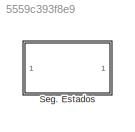
MODEL slx_5559c393f8e9
KIND model
CONFIG AbsTol = auto
CONFIG EnableMultiTasking = off
CONFIG FixedStep = auto
CONFIG MaxStep = 1e-3
CONFIG MinStep = auto
CONFIG RelTol = 1e-3
CONFIG SampleTimeConstraint = Unconstrained
CONFIG SolverName = ode23t
CONFIG StartTime = 0.0
CONFIG StopTime = 60
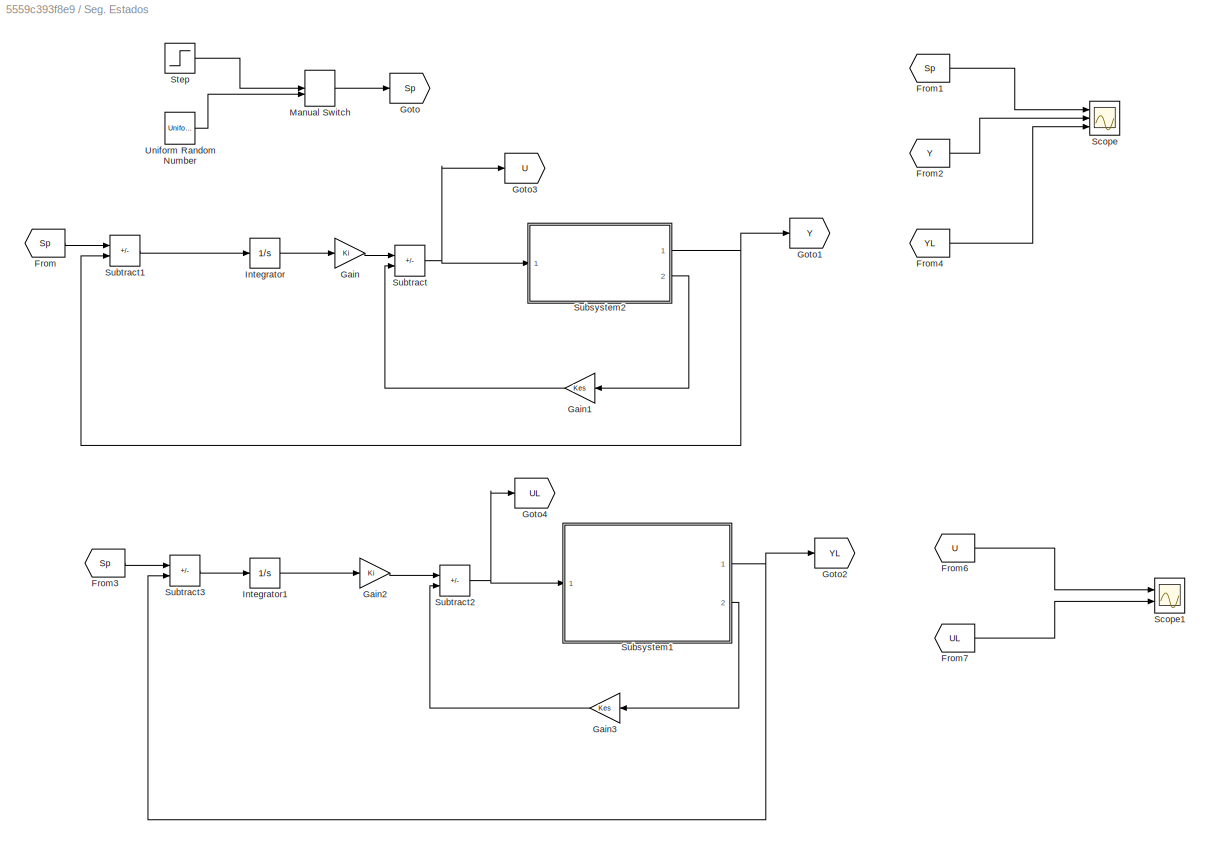
BLOCK [SubSystem] Seg. Estados
  Commented = on
  Ports = []
BLOCK [From] Seg. Estados/From
  GotoTag = Sp
BLOCK [From] Seg. Estados/From1
  GotoTag = Sp
BLOCK [From] Seg. Estados/From2
  GotoTag = Y
BLOCK [From] Seg. Estados/From3
  GotoTag = Sp
BLOCK [From] Seg. Estados/From4
  GotoTag = YL
BLOCK [From] Seg. Estados/From6
  GotoTag = U
BLOCK [From] Seg. Estados/From7
  GotoTag = UL
BLOCK [Gain] Seg. Estados/Gain
  Gain = Ki
  Multiplication = Matrix(K*u)
BLOCK [Gain] Seg. Estados/Gain1
  Gain = Kes
  Multiplication = Matrix(K*u)
  NameLocation = top
BLOCK [Gain] Seg. Estados/Gain2
  Gain = Ki
  Multiplication = Matrix(K*u)
BLOCK [Gain] Seg. Estados/Gain3
  Gain = Kes
  Multiplication = Matrix(K*u)
  NameLocation = top
BLOCK [Goto] Seg. Estados/Goto
  GotoTag = Sp
BLOCK [Goto] Seg. Estados/Goto1
  GotoTag = Y
BLOCK [Goto] Seg. Estados/Goto2
  GotoTag = YL
BLOCK [Goto] Seg. Estados/Goto3
  GotoTag = U
BLOCK [Goto] Seg. Estados/Goto4
  GotoTag = UL
BLOCK [Integrator] Seg. Estados/Integrator
  Ports = [1, 1]
BLOCK [Integrator] Seg. Estados/Integrator1
  Ports = [1, 1]
BLOCK [ManualSwitch] Seg. Estados/Manual Switch
  CurrentSetting = 0
BLOCK [Scope] Seg. Estados/Scope
  Floating = off
  NumInputPorts = 3
  Ports = [3]
  ScopeSpecificationString = Simulink.scopes.TimeScopeBlockCfg('CurrentConfiguration', extmgr.ConfigurationSet(extmgr.Configuration('Core','General UI',true,'FigureColor',[1 1 1]),extmgr.Configuration('Core','Source UI',true),extmgr.Configuration('Sources','WiredSimulink',true,'DataLoggingVariableName','ScopeData8'),extmgr.Configuration('Visuals','Time Domain',true,'SerializedDisplays',{struct('MinYLimReal','-2.66256','MaxYLi...<+2476ch>
BLOCK [Scope] Seg. Estados/Scope1
  Floating = off
  NumInputPorts = 2
  Ports = [2]
  ScopeSpecificationString = Simulink.scopes.TimeScopeBlockCfg('CurrentConfiguration', extmgr.ConfigurationSet(extmgr.Configuration('Core','General UI',true,'FigureColor',[1 1 1]),extmgr.Configuration('Core','Source UI',true),extmgr.Configuration('Sources','WiredSimulink',true,'DataLoggingVariableName','ScopeData9'),extmgr.Configuration('Visuals','Time Domain',true,'SerializedDisplays',{struct('MinYLimReal','-19.01074','MaxYL...<+2473ch>
BLOCK [Step] Seg. Estados/Step
  After = 0
  SampleTime = 0
  Time = 0
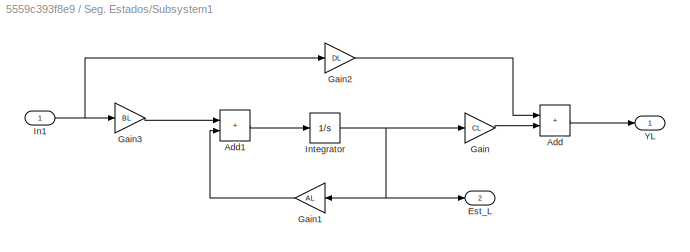
BLOCK [SubSystem] Seg. Estados/Subsystem1
  Ports = [1, 2]
BLOCK [Sum] Seg. Estados/Subsystem1/Add
  IconShape = rectangular
  Ports = [2, 1]
BLOCK [Sum] Seg. Estados/Subsystem1/Add1
  IconShape = rectangular
  Ports = [2, 1]
BLOCK [Outport] Seg. Estados/Subsystem1/Est_L
  Port = 2
BLOCK [Gain] Seg. Estados/Subsystem1/Gain
  Gain = CL
  Multiplication = Matrix(K*u)
BLOCK [Gain] Seg. Estados/Subsystem1/Gain1
  Gain = AL
  Multiplication = Matrix(K*u)
  NameLocation = top
BLOCK [Gain] Seg. Estados/Subsystem1/Gain2
  Gain = DL
  Multiplication = Matrix(K*u)
BLOCK [Gain] Seg. Estados/Subsystem1/Gain3
  Gain = BL
  Multiplication = Matrix(K*u)
BLOCK [Inport] Seg. Estados/Subsystem1/In1
BLOCK [Integrator] Seg. Estados/Subsystem1/Integrator
  Ports = [1, 1]
BLOCK [Outport] Seg. Estados/Subsystem1/YL
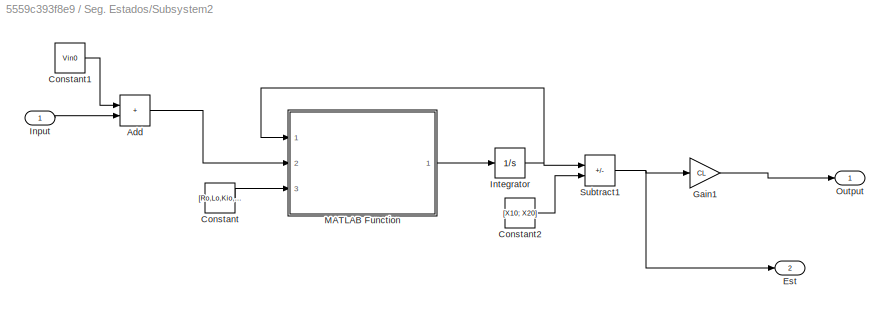
BLOCK [SubSystem] Seg. Estados/Subsystem2
  Ports = [1, 2]
BLOCK [Sum] Seg. Estados/Subsystem2/Add
  IconShape = rectangular
  Ports = [2, 1]
BLOCK [Constant] Seg. Estados/Subsystem2/Constant
  Value = [Ro,Lo,Kio, Kvo, Jmo, Jlo, Bmo, Blo, no, go, do, mo]
BLOCK [Constant] Seg. Estados/Subsystem2/Constant1
  Value = Vin0
BLOCK [Constant] Seg. Estados/Subsystem2/Constant2
  Value = [X10; X20]
BLOCK [Outport] Seg. Estados/Subsystem2/Est
  Port = 2
BLOCK [Gain] Seg. Estados/Subsystem2/Gain1
  Gain = CL
  Multiplication = Matrix(K*u)
BLOCK [Inport] Seg. Estados/Subsystem2/Input
BLOCK [Integrator] Seg. Estados/Subsystem2/Integrator
  InitialCondition = [X10; X20]
  Ports = [1, 1]
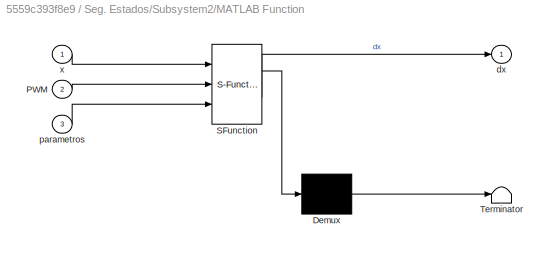
BLOCK [SubSystem] Seg. Estados/Subsystem2/MATLAB Function
  ErrorFcn = Stateflow.Translate.translate
  PermitHierarchicalResolution = ExplicitOnly
  Ports = [3, 1]
  SFBlockType = MATLAB Function
  TreatAsAtomicUnit = on
BLOCK [Demux] Seg. Estados/Subsystem2/MATLAB Function/ Demux 
  Outputs = 1
  Ports = [1, 1]
BLOCK [S-Function] Seg. Estados/Subsystem2/MATLAB Function/ SFunction 
  EnableBusSupport = off
  FunctionName = sf_sfun
  PortCounts = [3 2]
  Ports = [3, 2]
  SFcnIsStateOwnerBlock = off
  SFunctionDeploymentMode = off
  Tag = Stateflow S-Function 10
BLOCK [Terminator] Seg. Estados/Subsystem2/MATLAB Function/ Terminator 
BLOCK [Inport] Seg. Estados/Subsystem2/MATLAB Function/PWM
  Port = 2
BLOCK [Outport] Seg. Estados/Subsystem2/MATLAB Function/dx
BLOCK [Inport] Seg. Estados/Subsystem2/MATLAB Function/parametros
  Port = 3
BLOCK [Inport] Seg. Estados/Subsystem2/MATLAB Function/x
BLOCK [Outport] Seg. Estados/Subsystem2/Output
BLOCK [Sum] Seg. Estados/Subsystem2/Subtract1
  IconShape = rectangular
  Inputs = +-
  Ports = [2, 1]
BLOCK [Sum] Seg. Estados/Subtract
  IconShape = rectangular
  Inputs = +-
  Ports = [2, 1]
BLOCK [Sum] Seg. Estados/Subtract1
  IconShape = rectangular
  Inputs = +-
  Ports = [2, 1]
BLOCK [Sum] Seg. Estados/Subtract2
  IconShape = rectangular
  Inputs = +-
  Ports = [2, 1]
BLOCK [Sum] Seg. Estados/Subtract3
  IconShape = rectangular
  Inputs = +-
  Ports = [2, 1]
BLOCK [UniformRandomNumber] Seg. Estados/Uniform Random Number
  Maximum = 120*(pi/180)
  Minimum = -120*(pi/180)
  SampleTime = 10
LINE Seg. Estados/From1:1 -> Seg. Estados/Scope:1
LINE Seg. Estados/From2:1 -> Seg. Estados/Scope:2
LINE Seg. Estados/From3:1 -> Seg. Estados/Subtract3:1
LINE Seg. Estados/From4:1 -> Seg. Estados/Scope:3
LINE Seg. Estados/From6:1 -> Seg. Estados/Scope1:1
LINE Seg. Estados/From7:1 -> Seg. Estados/Scope1:2
LINE Seg. Estados/From:1 -> Seg. Estados/Subtract1:1
LINE Seg. Estados/Gain1:1 -> Seg. Estados/Subtract:2
LINE Seg. Estados/Gain2:1 -> Seg. Estados/Subtract2:1
LINE Seg. Estados/Gain3:1 -> Seg. Estados/Subtract2:2
LINE Seg. Estados/Gain:1 -> Seg. Estados/Subtract:1
LINE Seg. Estados/Integrator1:1 -> Seg. Estados/Gain2:1
LINE Seg. Estados/Integrator:1 -> Seg. Estados/Gain:1
LINE Seg. Estados/Manual Switch:1 -> Seg. Estados/Goto:1
LINE Seg. Estados/Step:1 -> Seg. Estados/Manual Switch:1
LINE Seg. Estados/Subsystem1/Add1:1 -> Seg. Estados/Subsystem1/Integrator:1
LINE Seg. Estados/Subsystem1/Add:1 -> Seg. Estados/Subsystem1/YL:1
LINE Seg. Estados/Subsystem1/Gain1:1 -> Seg. Estados/Subsystem1/Add1:2
LINE Seg. Estados/Subsystem1/Gain2:1 -> Seg. Estados/Subsystem1/Add:1
LINE Seg. Estados/Subsystem1/Gain3:1 -> Seg. Estados/Subsystem1/Add1:1
LINE Seg. Estados/Subsystem1/Gain:1 -> Seg. Estados/Subsystem1/Add:2
NET Seg. Estados/Subsystem1/In1:1 -> Seg. Estados/Subsystem1/Gain2:1, Seg. Estados/Subsystem1/Gain3:1
NET Seg. Estados/Subsystem1/Integrator:1 -> Seg. Estados/Subsystem1/Est_L:1, Seg. Estados/Subsystem1/Gain1:1, Seg. Estados/Subsystem1/Gain:1
NET Seg. Estados/Subsystem1:1 -> Seg. Estados/Goto2:1, Seg. Estados/Subtract3:2
LINE Seg. Estados/Subsystem1:2 -> Seg. Estados/Gain3:1
LINE Seg. Estados/Subsystem2/Add:1 -> Seg. Estados/Subsystem2/MATLAB Function:2
LINE Seg. Estados/Subsystem2/Constant1:1 -> Seg. Estados/Subsystem2/Add:1
LINE Seg. Estados/Subsystem2/Constant2:1 -> Seg. Estados/Subsystem2/Subtract1:2
LINE Seg. Estados/Subsystem2/Constant:1 -> Seg. Estados/Subsystem2/MATLAB Function:3
LINE Seg. Estados/Subsystem2/Gain1:1 -> Seg. Estados/Subsystem2/Output:1
LINE Seg. Estados/Subsystem2/Input:1 -> Seg. Estados/Subsystem2/Add:2
NET Seg. Estados/Subsystem2/Integrator:1 -> Seg. Estados/Subsystem2/MATLAB Function:1, Seg. Estados/Subsystem2/Subtract1:1
LINE Seg. Estados/Subsystem2/MATLAB Function:1 -> Seg. Estados/Subsystem2/Integrator:1
NET Seg. Estados/Subsystem2/Subtract1:1 -> Seg. Estados/Subsystem2/Est:1, Seg. Estados/Subsystem2/Gain1:1
NET Seg. Estados/Subsystem2:1 -> Seg. Estados/Goto1:1, Seg. Estados/Subtract1:2
LINE Seg. Estados/Subsystem2:2 -> Seg. Estados/Gain1:1
LINE Seg. Estados/Subtract1:1 -> Seg. Estados/Integrator:1
NET Seg. Estados/Subtract2:1 -> Seg. Estados/Goto4:1, Seg. Estados/Subsystem1:1
LINE Seg. Estados/Subtract3:1 -> Seg. Estados/Integrator1:1
NET Seg. Estados/Subtract:1 -> Seg. Estados/Goto3:1, Seg. Estados/Subsystem2:1
LINE Seg. Estados/Uniform Random Number:1 -> Seg. Estados/Manual Switch:2
note: NET lines group one-source signal fan-out (src -> all destinations, sorted); 1:1 wires keep LINE
CHART Seg. Estados/Subsystem2/MATLAB Function states=1 transitions=1
  STATE_LABEL 'eML_blk_kernel()'
  STATE_LABEL 'SCRIPT:\nfunction dx = fcn(x,PWM,parametros)\n\n%ESTADOS\nx1 = x(1);\nx2 = x(2);\n\n%Parametros\nR = parametros(1);\nL = parametros(2);\nKi = parametros(3);\nKv = parametros(4);\nJm = parametros(5);\nJl = parametros(6);\nBm = parametros(7);\nBl = parametros(8);\nn = parametros(9);\ng = parametros(10);\nd = parametros(11);\nm = parametros(12);\n\n%EXPRESIONES\nf1 = x2; %d0l/dt = Wl\nf2= ((Ki*(((7*PWM/100)-(Kv*x2*n)/R))*n...<+63ch>'
CHART  states=0 transitions=0
